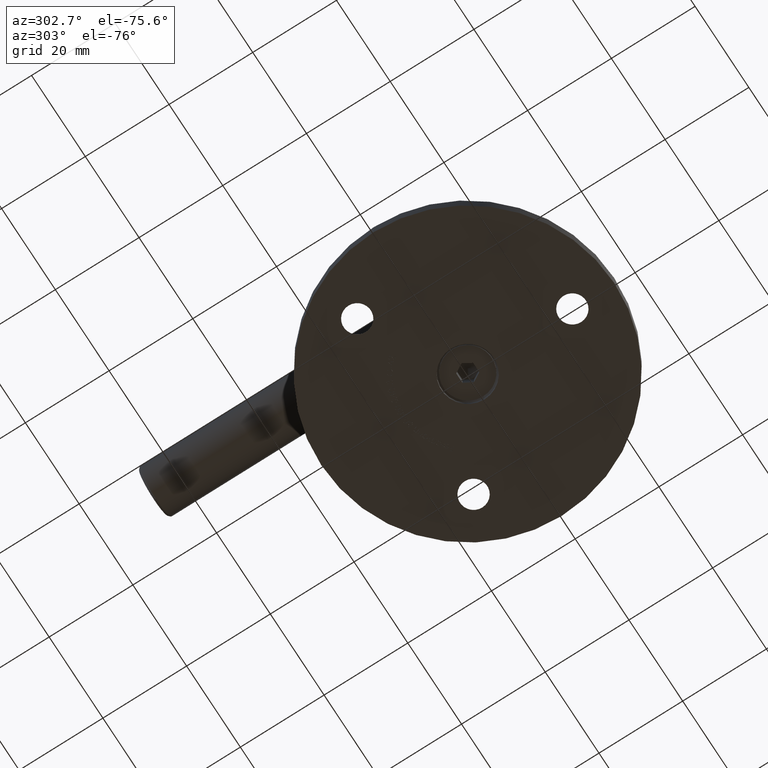
[diagram: clean part render]
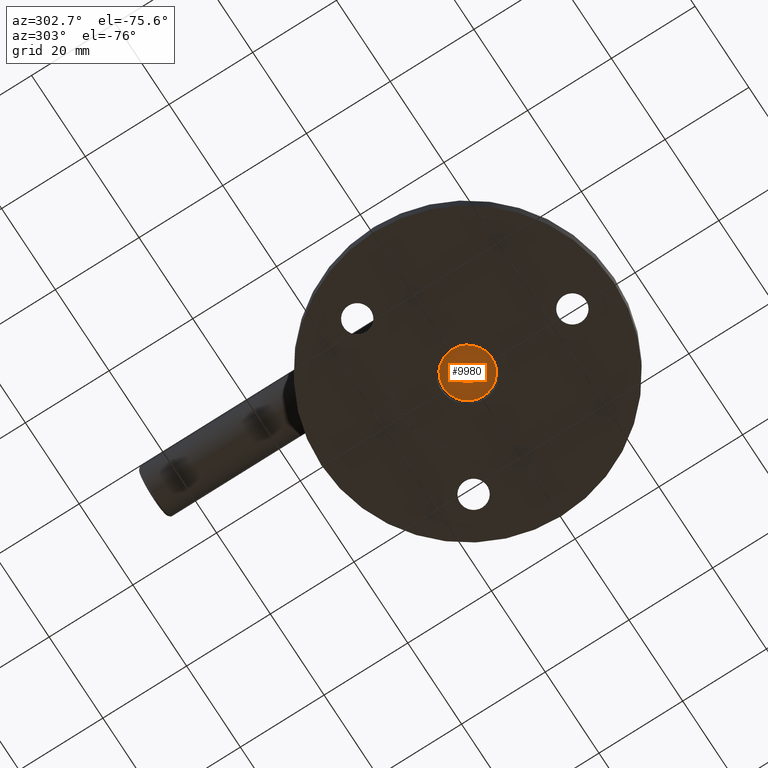
[diagram: same view with one face highlighted and labeled with its STEP entity id]
A machine part, auxiliary view. The second image highlights one B-rep face of the part: STEP entity #9980.
In plain terms, the highlighted planar face has unit normal (0, 0, -1).
Its self-contained STEP definition (entity closure, byte-faithful):
#146 = EDGE_CURVE ( 'NONE', #1961, #8724, #3359, .T. ) ;
#330 = ORIENTED_EDGE ( 'NONE', *, *, #15917, .T. ) ;
#430 = LINE ( 'NONE', #20664, #11032 ) ;
#649 = DIRECTION ( 'NONE',  ( 0.000000000000000000, 1.000000000000000000, 0.000000000000000000 ) ) ;
#1355 = CARTESIAN_POINT ( 'NONE',  ( 0.000000000000000000, 1.160474041071148710, -2.009999999999999787 ) ) ;
#1699 = CARTESIAN_POINT ( 'NONE',  ( 0.000000000000000000, 0.000000000000000000, 0.000000000000000000 ) ) ;
#1961 = VERTEX_POINT ( 'NONE', #12069 ) ;
#2147 = VERTEX_POINT ( 'NONE', #8715 ) ;
#2362 = DIRECTION ( 'NONE',  ( -1.000000000000000000, -0.000000000000000000, -0.000000000000000000 ) ) ;
#2560 = EDGE_LOOP ( 'NONE', ( #9603, #6762 ) ) ;
#2700 = EDGE_CURVE ( 'NONE', #21448, #15336, #20465, .T. ) ;
#2741 = LINE ( 'NONE', #3818, #20710 ) ;
#3090 = CIRCLE ( 'NONE', #12412, 5.785000000000000142 ) ;
#3359 = CIRCLE ( 'NONE', #5691, 5.785000000000000142 ) ;
#3517 = DIRECTION ( 'NONE',  ( 0.000000000000000000, 0.000000000000000000, 1.000000000000000000 ) ) ;
#3525 = CARTESIAN_POINT ( 'NONE',  ( -0.000000000000000000, -1.160474041071146267, -2.009999999999999787 ) ) ;
#3818 = CARTESIAN_POINT ( 'NONE',  ( 0.000000000000000000, 1.160474041071148710, -2.009999999999999787 ) ) ;
#4471 = EDGE_CURVE ( 'NONE', #11841, #2147, #2741, .T. ) ;
#4622 = AXIS2_PLACEMENT_3D ( 'NONE', #16578, #19916, #7688 ) ;
#5348 = DIRECTION ( 'NONE',  ( 0.000000000000000000, -0.4999999999999995004, -0.8660254037844389297 ) ) ;
#5691 = AXIS2_PLACEMENT_3D ( 'NONE', #1699, #13949, #3517 ) ;
#6681 = VECTOR ( 'NONE', #649, 1000.000000000000000 ) ;
#6762 = ORIENTED_EDGE ( 'NONE', *, *, #146, .T. ) ;
#6965 = LINE ( 'NONE', #18392, #16769 ) ;
#7197 = CARTESIAN_POINT ( 'NONE',  ( -0.000000000000000000, -1.160474041071146267, -2.009999999999999787 ) ) ;
#7688 = DIRECTION ( 'NONE',  ( -0.000000000000000000, 0.000000000000000000, 1.000000000000000000 ) ) ;
#8351 = DIRECTION ( 'NONE',  ( 0.000000000000000000, -0.4999999999999999445, 0.8660254037844385966 ) ) ;
#8371 = CARTESIAN_POINT ( 'NONE',  ( 0.000000000000000000, -2.320948082142291646, 2.168404344971008868E-16 ) ) ;
#8402 = ORIENTED_EDGE ( 'NONE', *, *, #4471, .T. ) ;
#8715 = CARTESIAN_POINT ( 'NONE',  ( 0.000000000000000000, 2.320948082142295643, 8.350257052548250149E-16 ) ) ;
#8724 = VERTEX_POINT ( 'NONE', #12925 ) ;
#9603 = ORIENTED_EDGE ( 'NONE', *, *, #18322, .T. ) ;
#9980 = ADVANCED_FACE ( 'NONE', ( #20958, #12254 ), #14752, .T. ) ;
#10884 = ORIENTED_EDGE ( 'NONE', *, *, #2700, .T. ) ;
#11032 = VECTOR ( 'NONE', #8351, 1000.000000000000114 ) ;
#11347 = DIRECTION ( 'NONE',  ( -0.000000000000000000, 0.4999999999999996114, -0.8660254037844389297 ) ) ;
#11569 = LINE ( 'NONE', #7197, #6681 ) ;
#11841 = VERTEX_POINT ( 'NONE', #1355 ) ;
#12069 = CARTESIAN_POINT ( 'NONE',  ( 0.000000000000000000, 7.084581733067438024E-16, -5.785000000000000142 ) ) ;
#12254 = FACE_BOUND ( 'NONE', #18133, .T. ) ;
#12412 = AXIS2_PLACEMENT_3D ( 'NONE', #21663, #2362, #14541 ) ;
#12481 = VECTOR ( 'NONE', #11347, 1000.000000000000000 ) ;
#12925 = CARTESIAN_POINT ( 'NONE',  ( 0.000000000000000000, 0.000000000000000000, 5.785000000000000142 ) ) ;
#13071 = VERTEX_POINT ( 'NONE', #3525 ) ;
#13949 = DIRECTION ( 'NONE',  ( -1.000000000000000000, -0.000000000000000000, -0.000000000000000000 ) ) ;
#14534 = CARTESIAN_POINT ( 'NONE',  ( 0.000000000000000000, 1.160474041071148710, 2.009999999999999787 ) ) ;
#14541 = DIRECTION ( 'NONE',  ( 0.000000000000000000, 0.000000000000000000, 1.000000000000000000 ) ) ;
#14617 = CARTESIAN_POINT ( 'NONE',  ( 0.000000000000000000, -1.160474041071146489, 2.009999999999999787 ) ) ;
#14752 = PLANE ( 'NONE',  #4622 ) ;
#15131 = EDGE_CURVE ( 'NONE', #16420, #21448, #6965, .T. ) ;
#15336 = VERTEX_POINT ( 'NONE', #8371 ) ;
#15646 = EDGE_CURVE ( 'NONE', #2147, #16420, #430, .T. ) ;
#15856 = VECTOR ( 'NONE', #5348, 1000.000000000000000 ) ;
#15917 = EDGE_CURVE ( 'NONE', #13071, #11841, #11569, .T. ) ;
#15995 = DIRECTION ( 'NONE',  ( 0.000000000000000000, 0.4999999999999996114, 0.8660254037844388186 ) ) ;
#16420 = VERTEX_POINT ( 'NONE', #14534 ) ;
#16578 = CARTESIAN_POINT ( 'NONE',  ( 0.000000000000000000, 0.000000000000000000, 0.000000000000000000 ) ) ;
#16705 = ORIENTED_EDGE ( 'NONE', *, *, #15646, .T. ) ;
#16769 = VECTOR ( 'NONE', #21888, 1000.000000000000000 ) ;
#18133 = EDGE_LOOP ( 'NONE', ( #10884, #20089, #330, #8402, #16705, #19366 ) ) ;
#18322 = EDGE_CURVE ( 'NONE', #8724, #1961, #3090, .T. ) ;
#18392 = CARTESIAN_POINT ( 'NONE',  ( 0.000000000000000000, 1.160474041071148710, 2.009999999999999787 ) ) ;
#19253 = EDGE_CURVE ( 'NONE', #15336, #13071, #21711, .T. ) ;
#19366 = ORIENTED_EDGE ( 'NONE', *, *, #15131, .T. ) ;
#19916 = DIRECTION ( 'NONE',  ( -1.000000000000000000, 0.000000000000000000, -0.000000000000000000 ) ) ;
#20089 = ORIENTED_EDGE ( 'NONE', *, *, #19253, .T. ) ;
#20411 = CARTESIAN_POINT ( 'NONE',  ( 0.000000000000000000, -1.160474041071146489, 2.009999999999999787 ) ) ;
#20465 = LINE ( 'NONE', #20411, #15856 ) ;
#20664 = CARTESIAN_POINT ( 'NONE',  ( 0.000000000000000000, 2.320948082142295643, 8.350257052548250149E-16 ) ) ;
#20710 = VECTOR ( 'NONE', #15995, 1000.000000000000000 ) ;
#20958 = FACE_OUTER_BOUND ( 'NONE', #2560, .T. ) ;
#21448 = VERTEX_POINT ( 'NONE', #14617 ) ;
#21663 = CARTESIAN_POINT ( 'NONE',  ( 0.000000000000000000, 0.000000000000000000, 0.000000000000000000 ) ) ;
#21711 = LINE ( 'NONE', #21835, #12481 ) ;
#21835 = CARTESIAN_POINT ( 'NONE',  ( 0.000000000000000000, -2.320948082142292535, 4.090768232818179312E-17 ) ) ;
#21888 = DIRECTION ( 'NONE',  ( 0.000000000000000000, -1.000000000000000000, 0.000000000000000000 ) ) ;